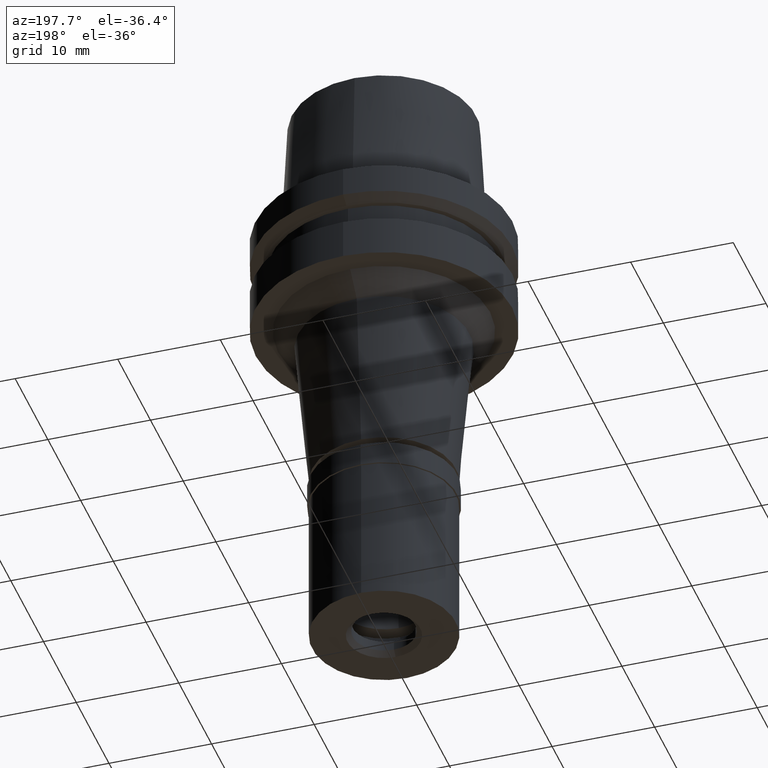
[diagram: clean part render]
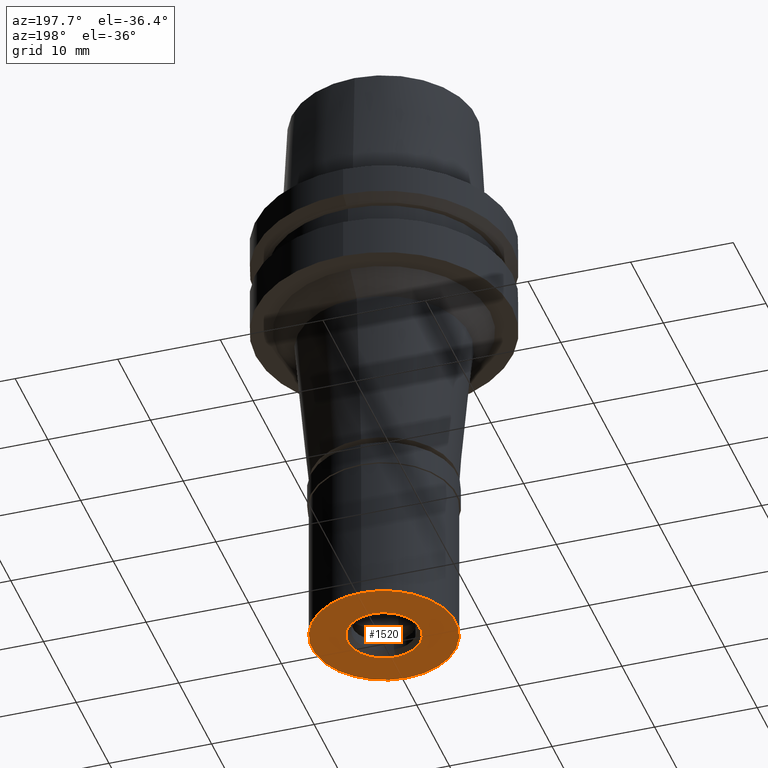
[diagram: same view with one face highlighted and labeled with its STEP entity id]
A machine part, auxiliary view. The second image highlights one B-rep face of the part: STEP entity #1520.
In plain terms, the highlighted planar face has unit normal (0, 0, 1).
Its self-contained STEP definition (entity closure, byte-faithful):
#33 = VERTEX_POINT ( 'NONE', #1007 ) ;
#95 = AXIS2_PLACEMENT_3D ( 'NONE', #2118, #636, #1248 ) ;
#188 = DIRECTION ( 'NONE',  ( 0.0000000000000000000, -1.000000000000000000, 0.0000000000000000000 ) ) ;
#284 = DIRECTION ( 'NONE',  ( 0.0000000000000000000, 1.000000000000000000, 0.0000000000000000000 ) ) ;
#289 = EDGE_CURVE ( 'NONE', #1630, #1540, #971, .T. ) ;
#329 = FACE_OUTER_BOUND ( 'NONE', #1731, .T. ) ;
#379 = ORIENTED_EDGE ( 'NONE', *, *, #2432, .F. ) ;
#549 = CIRCLE ( 'NONE', #1980, 3.550000000000000266 ) ;
#557 = DIRECTION ( 'NONE',  ( 0.0000000000000000000, 0.0000000000000000000, 1.000000000000000000 ) ) ;
#636 = DIRECTION ( 'NONE',  ( 0.0000000000000000000, 0.0000000000000000000, -1.000000000000000000 ) ) ;
#697 = PLANE ( 'NONE',  #1559 ) ;
#721 = DIRECTION ( 'NONE',  ( 1.000000000000000000, 0.0000000000000000000, 0.0000000000000000000 ) ) ;
#881 = DIRECTION ( 'NONE',  ( 0.0000000000000000000, 0.0000000000000000000, 1.000000000000000000 ) ) ;
#950 = CARTESIAN_POINT ( 'NONE',  ( 0.0000000000000000000, 0.0000000000000000000, -17.00000000000000000 ) ) ;
#971 = CIRCLE ( 'NONE', #2629, 7.000000000000000000 ) ;
#997 = VERTEX_POINT ( 'NONE', #1640 ) ;
#1007 = CARTESIAN_POINT ( 'NONE',  ( 0.0000000000000000000, 3.550000000000000266, -17.00000000000000000 ) ) ;
#1013 = EDGE_LOOP ( 'NONE', ( #1331, #379 ) ) ;
#1181 = DIRECTION ( 'NONE',  ( 0.0000000000000000000, 0.0000000000000000000, -1.000000000000000000 ) ) ;
#1237 = EDGE_CURVE ( 'NONE', #33, #997, #1732, .T. ) ;
#1248 = DIRECTION ( 'NONE',  ( 0.0000000000000000000, 1.000000000000000000, 0.0000000000000000000 ) ) ;
#1331 = ORIENTED_EDGE ( 'NONE', *, *, #1237, .F. ) ;
#1365 = FACE_BOUND ( 'NONE', #1013, .T. ) ;
#1370 = ORIENTED_EDGE ( 'NONE', *, *, #289, .F. ) ;
#1508 = CARTESIAN_POINT ( 'NONE',  ( 0.0000000000000000000, -7.000000000000000000, -17.00000000000000000 ) ) ;
#1511 = CIRCLE ( 'NONE', #1691, 7.000000000000000000 ) ;
#1520 = ADVANCED_FACE ( 'NONE', ( #329, #1365 ), #697, .F. ) ;
#1540 = VERTEX_POINT ( 'NONE', #1508 ) ;
#1558 = CARTESIAN_POINT ( 'NONE',  ( 0.0000000000000000000, 0.0000000000000000000, -17.00000000000000000 ) ) ;
#1559 = AXIS2_PLACEMENT_3D ( 'NONE', #950, #2613, #721 ) ;
#1630 = VERTEX_POINT ( 'NONE', #2242 ) ;
#1640 = CARTESIAN_POINT ( 'NONE',  ( 0.0000000000000000000, -3.550000000000000266, -17.00000000000000000 ) ) ;
#1691 = AXIS2_PLACEMENT_3D ( 'NONE', #2082, #881, #2515 ) ;
#1731 = EDGE_LOOP ( 'NONE', ( #1370, #2385 ) ) ;
#1732 = CIRCLE ( 'NONE', #95, 3.550000000000000266 ) ;
#1836 = CARTESIAN_POINT ( 'NONE',  ( 0.0000000000000000000, 0.0000000000000000000, -17.00000000000000000 ) ) ;
#1980 = AXIS2_PLACEMENT_3D ( 'NONE', #1836, #1181, #188 ) ;
#2064 = EDGE_CURVE ( 'NONE', #1540, #1630, #1511, .T. ) ;
#2082 = CARTESIAN_POINT ( 'NONE',  ( 0.0000000000000000000, 0.0000000000000000000, -17.00000000000000000 ) ) ;
#2118 = CARTESIAN_POINT ( 'NONE',  ( 0.0000000000000000000, 0.0000000000000000000, -17.00000000000000000 ) ) ;
#2242 = CARTESIAN_POINT ( 'NONE',  ( 0.0000000000000000000, 7.000000000000000000, -17.00000000000000000 ) ) ;
#2385 = ORIENTED_EDGE ( 'NONE', *, *, #2064, .F. ) ;
#2432 = EDGE_CURVE ( 'NONE', #997, #33, #549, .T. ) ;
#2515 = DIRECTION ( 'NONE',  ( 0.0000000000000000000, -1.000000000000000000, 0.0000000000000000000 ) ) ;
#2613 = DIRECTION ( 'NONE',  ( 0.0000000000000000000, 0.0000000000000000000, 1.000000000000000000 ) ) ;
#2629 = AXIS2_PLACEMENT_3D ( 'NONE', #1558, #557, #284 ) ;